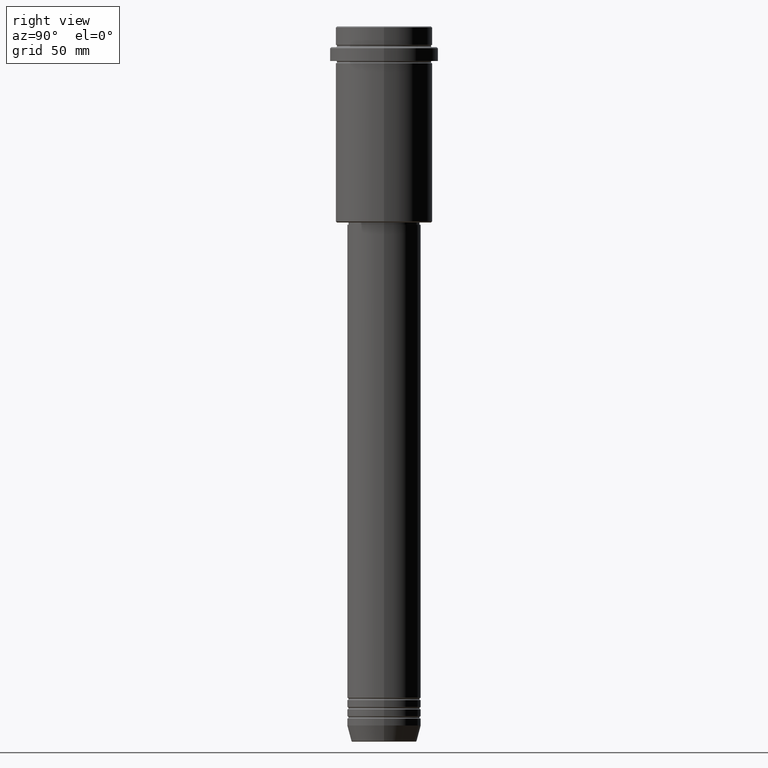
[diagram: clean part render]
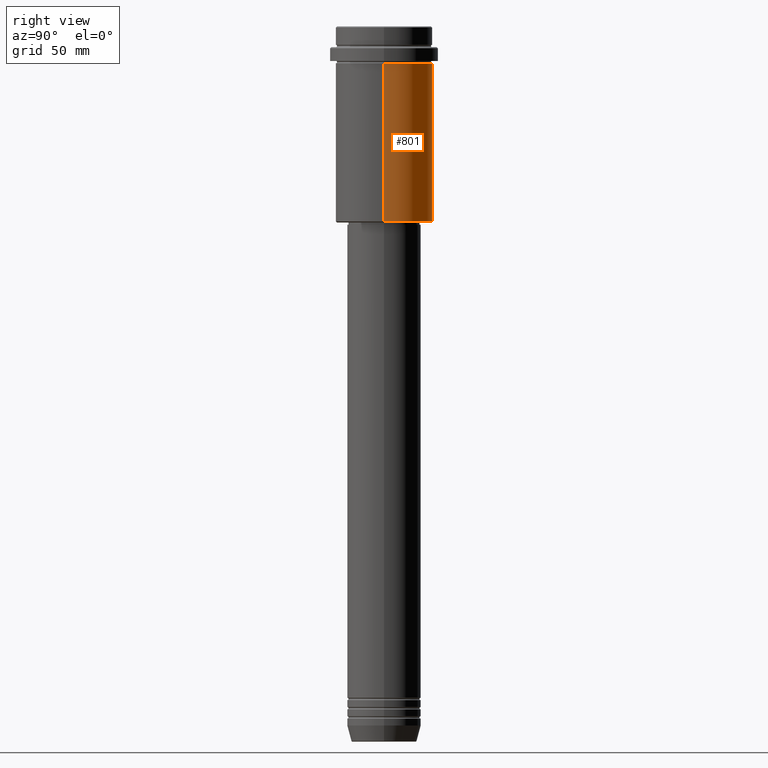
[diagram: same view with one face highlighted and labeled with its STEP entity id]
A machine part, right view. The second image highlights one B-rep face of the part: STEP entity #801.
In plain terms, the highlighted cylindrical surface (partial cylindrical patch) has radius 21 mm, axis along (-0, -0, 1).
Its self-contained STEP definition (entity closure, byte-faithful):
#33 = LINE ( 'NONE', #921, #900 ) ;
#76 = EDGE_CURVE ( 'NONE', #399, #826, #33, .T. ) ;
#159 = VERTEX_POINT ( 'NONE', #289 ) ;
#209 = CARTESIAN_POINT ( 'NONE',  ( -21.00000000000000000, 2.571758278209441661E-15, -16.00000000000000355 ) ) ;
#220 = DIRECTION ( 'NONE',  ( -0.000000000000000000, -0.000000000000000000, 1.000000000000000000 ) ) ;
#286 = DIRECTION ( 'NONE',  ( -0.000000000000000000, -0.000000000000000000, 1.000000000000000000 ) ) ;
#289 = CARTESIAN_POINT ( 'NONE',  ( -21.00000000000000000, 2.571758278209441661E-15, -84.50000000000008527 ) ) ;
#299 = VERTEX_POINT ( 'NONE', #209 ) ;
#311 = ORIENTED_EDGE ( 'NONE', *, *, #1278, .T. ) ;
#370 = DIRECTION ( 'NONE',  ( -0.000000000000000000, -0.000000000000000000, 1.000000000000000000 ) ) ;
#399 = VERTEX_POINT ( 'NONE', #590 ) ;
#450 = VECTOR ( 'NONE', #220, 1000.000000000000000 ) ;
#533 = EDGE_CURVE ( 'NONE', #826, #299, #1069, .T. ) ;
#590 = CARTESIAN_POINT ( 'NONE',  ( 21.00000000000000000, 0.000000000000000000, -84.50000000000008527 ) ) ;
#654 = CARTESIAN_POINT ( 'NONE',  ( 21.00000000000000000, 0.000000000000000000, -16.00000000000000355 ) ) ;
#655 = ORIENTED_EDGE ( 'NONE', *, *, #656, .T. ) ;
#656 = EDGE_CURVE ( 'NONE', #399, #159, #1016, .T. ) ;
#687 = CARTESIAN_POINT ( 'NONE',  ( 0.000000000000000000, 0.000000000000000000, -84.50000000000008527 ) ) ;
#688 = AXIS2_PLACEMENT_3D ( 'NONE', #687, #907, #1220 ) ;
#701 = ORIENTED_EDGE ( 'NONE', *, *, #76, .F. ) ;
#719 = ORIENTED_EDGE ( 'NONE', *, *, #533, .F. ) ;
#749 = DIRECTION ( 'NONE',  ( 1.000000000000000000, 0.000000000000000000, 0.000000000000000000 ) ) ;
#757 = CARTESIAN_POINT ( 'NONE',  ( 0.000000000000000000, 0.000000000000000000, -16.00000000000000355 ) ) ;
#779 = LINE ( 'NONE', #928, #450 ) ;
#801 = ADVANCED_FACE ( 'NONE', ( #1400 ), #1188, .T. ) ;
#826 = VERTEX_POINT ( 'NONE', #654 ) ;
#847 = DIRECTION ( 'NONE',  ( 1.000000000000000000, 0.000000000000000000, 0.000000000000000000 ) ) ;
#900 = VECTOR ( 'NONE', #370, 1000.000000000000000 ) ;
#907 = DIRECTION ( 'NONE',  ( -0.000000000000000000, -0.000000000000000000, 1.000000000000000000 ) ) ;
#921 = CARTESIAN_POINT ( 'NONE',  ( 21.00000000000000000, 0.000000000000000000, 0.000000000000000000 ) ) ;
#928 = CARTESIAN_POINT ( 'NONE',  ( -21.00000000000000000, 2.571758278209441661E-15, 0.000000000000000000 ) ) ;
#1016 = CIRCLE ( 'NONE', #688, 21.00000000000000000 ) ;
#1040 = AXIS2_PLACEMENT_3D ( 'NONE', #757, #286, #847 ) ;
#1069 = CIRCLE ( 'NONE', #1040, 21.00000000000000000 ) ;
#1070 = AXIS2_PLACEMENT_3D ( 'NONE', #1199, #1415, #749 ) ;
#1188 = CYLINDRICAL_SURFACE ( 'NONE', #1070, 21.00000000000000000 ) ;
#1199 = CARTESIAN_POINT ( 'NONE',  ( 0.000000000000000000, 0.000000000000000000, 0.000000000000000000 ) ) ;
#1220 = DIRECTION ( 'NONE',  ( -1.000000000000000000, 0.000000000000000000, 0.000000000000000000 ) ) ;
#1278 = EDGE_CURVE ( 'NONE', #159, #299, #779, .T. ) ;
#1345 = EDGE_LOOP ( 'NONE', ( #655, #311, #719, #701 ) ) ;
#1400 = FACE_OUTER_BOUND ( 'NONE', #1345, .T. ) ;
#1415 = DIRECTION ( 'NONE',  ( -0.000000000000000000, -0.000000000000000000, 1.000000000000000000 ) ) ;